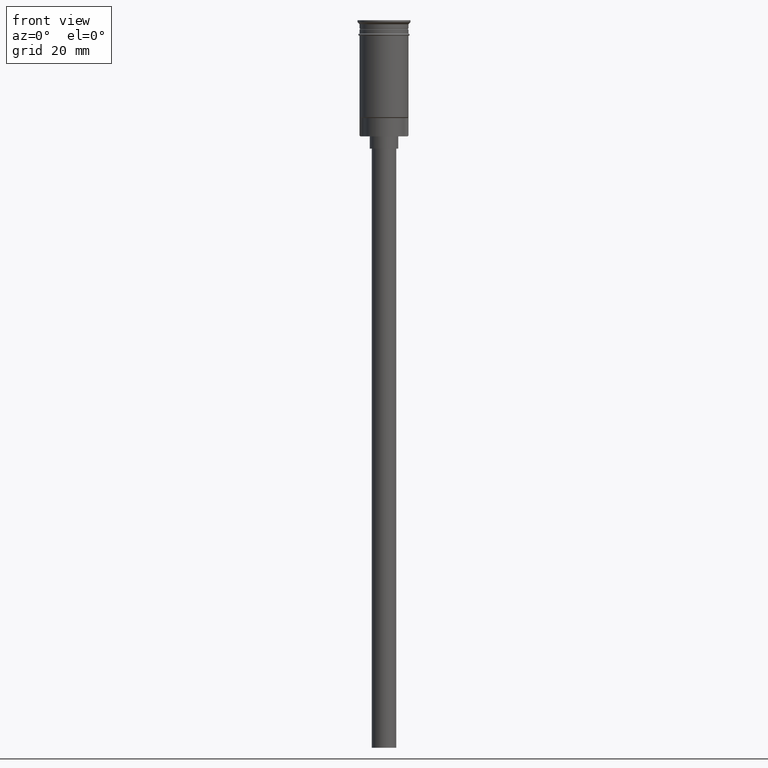
[diagram: clean part render]
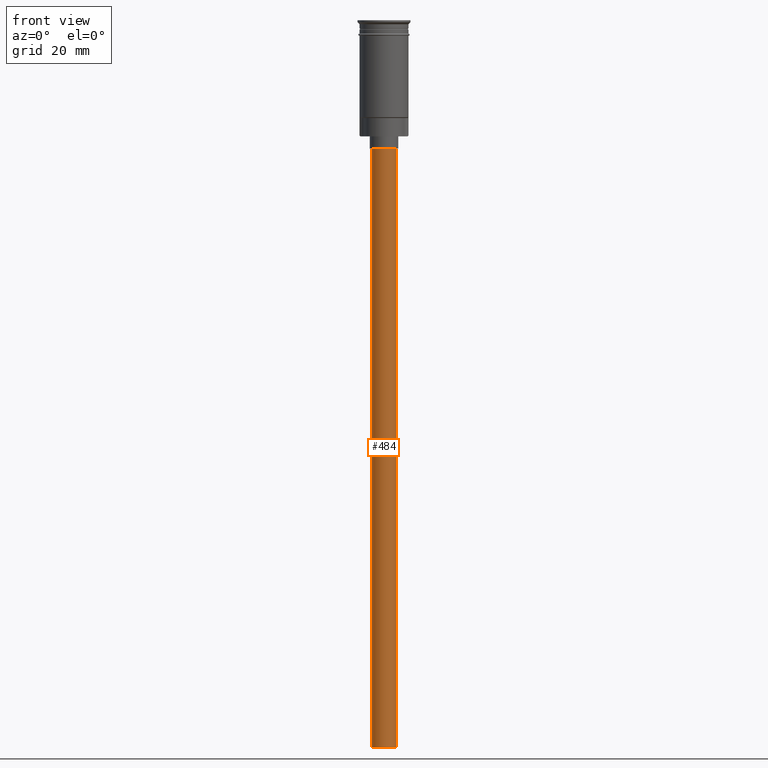
[diagram: same view with one face highlighted and labeled with its STEP entity id]
A machine part, front view. The second image highlights one B-rep face of the part: STEP entity #484.
In plain terms, the highlighted cylindrical surface (edge-blend (fillet) strip) has radius 3 mm, axis along (-0, -0, 1).
Its self-contained STEP definition (entity closure, byte-faithful):
#4 = ORIENTED_EDGE ( 'NONE', *, *, #1119, .T. ) ;
#8 = DIRECTION ( 'NONE',  ( 0.000000000000000000, 0.000000000000000000, -1.000000000000000000 ) ) ;
#42 = CYLINDRICAL_SURFACE ( 'NONE', #962, 3.000000000000000444 ) ;
#68 = CARTESIAN_POINT ( 'NONE',  ( 3.000000000000000444, 0.000000000000000000, -178.5000000000000000 ) ) ;
#73 = CIRCLE ( 'NONE', #837, 3.000000000000000444 ) ;
#137 = ORIENTED_EDGE ( 'NONE', *, *, #1520, .T. ) ;
#183 = AXIS2_PLACEMENT_3D ( 'NONE', #778, #1268, #496 ) ;
#189 = CARTESIAN_POINT ( 'NONE',  ( -3.000000000000000444, 3.673940397442060361E-16, -31.50000000000000000 ) ) ;
#259 = EDGE_CURVE ( 'NONE', #856, #524, #1331, .T. ) ;
#342 = EDGE_LOOP ( 'NONE', ( #749, #1398, #137, #4 ) ) ;
#352 = DIRECTION ( 'NONE',  ( -0.000000000000000000, -0.000000000000000000, 1.000000000000000000 ) ) ;
#484 = ADVANCED_FACE ( 'NONE', ( #1528 ), #42, .T. ) ;
#490 = VERTEX_POINT ( 'NONE', #1046 ) ;
#496 = DIRECTION ( 'NONE',  ( -1.000000000000000000, 0.000000000000000000, 0.000000000000000000 ) ) ;
#503 = DIRECTION ( 'NONE',  ( -1.000000000000000000, 0.000000000000000000, 0.000000000000000000 ) ) ;
#524 = VERTEX_POINT ( 'NONE', #189 ) ;
#536 = DIRECTION ( 'NONE',  ( 1.000000000000000000, 0.000000000000000000, 0.000000000000000000 ) ) ;
#556 = DIRECTION ( 'NONE',  ( -0.000000000000000000, -0.000000000000000000, 1.000000000000000000 ) ) ;
#635 = CARTESIAN_POINT ( 'NONE',  ( 0.000000000000000000, 0.000000000000000000, -178.5000000000000000 ) ) ;
#650 = EDGE_CURVE ( 'NONE', #1587, #856, #73, .T. ) ;
#668 = DIRECTION ( 'NONE',  ( -0.000000000000000000, -0.000000000000000000, 1.000000000000000000 ) ) ;
#673 = LINE ( 'NONE', #68, #1516 ) ;
#749 = ORIENTED_EDGE ( 'NONE', *, *, #259, .F. ) ;
#778 = CARTESIAN_POINT ( 'NONE',  ( 0.000000000000000000, 0.000000000000000000, -31.50000000000000000 ) ) ;
#810 = VECTOR ( 'NONE', #352, 1000.000000000000000 ) ;
#830 = CARTESIAN_POINT ( 'NONE',  ( -3.000000000000000444, 3.673940397442060361E-16, -178.5000000000000000 ) ) ;
#837 = AXIS2_PLACEMENT_3D ( 'NONE', #635, #8, #503 ) ;
#856 = VERTEX_POINT ( 'NONE', #925 ) ;
#925 = CARTESIAN_POINT ( 'NONE',  ( -3.000000000000000444, 3.673940397442060361E-16, -178.5000000000000000 ) ) ;
#962 = AXIS2_PLACEMENT_3D ( 'NONE', #1401, #668, #536 ) ;
#989 = CIRCLE ( 'NONE', #183, 3.000000000000000444 ) ;
#1046 = CARTESIAN_POINT ( 'NONE',  ( 3.000000000000000444, 0.000000000000000000, -31.50000000000000000 ) ) ;
#1119 = EDGE_CURVE ( 'NONE', #490, #524, #989, .T. ) ;
#1268 = DIRECTION ( 'NONE',  ( 0.000000000000000000, 0.000000000000000000, -1.000000000000000000 ) ) ;
#1331 = LINE ( 'NONE', #830, #810 ) ;
#1398 = ORIENTED_EDGE ( 'NONE', *, *, #650, .F. ) ;
#1401 = CARTESIAN_POINT ( 'NONE',  ( 0.000000000000000000, 0.000000000000000000, -178.5000000000000000 ) ) ;
#1516 = VECTOR ( 'NONE', #556, 1000.000000000000000 ) ;
#1520 = EDGE_CURVE ( 'NONE', #1587, #490, #673, .T. ) ;
#1525 = CARTESIAN_POINT ( 'NONE',  ( 3.000000000000000444, 0.000000000000000000, -178.5000000000000000 ) ) ;
#1528 = FACE_OUTER_BOUND ( 'NONE', #342, .T. ) ;
#1587 = VERTEX_POINT ( 'NONE', #1525 ) ;